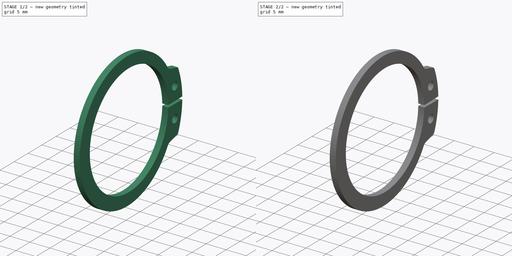
[diagram: build sequence overview — one tinted view per stage of 2, left to right]
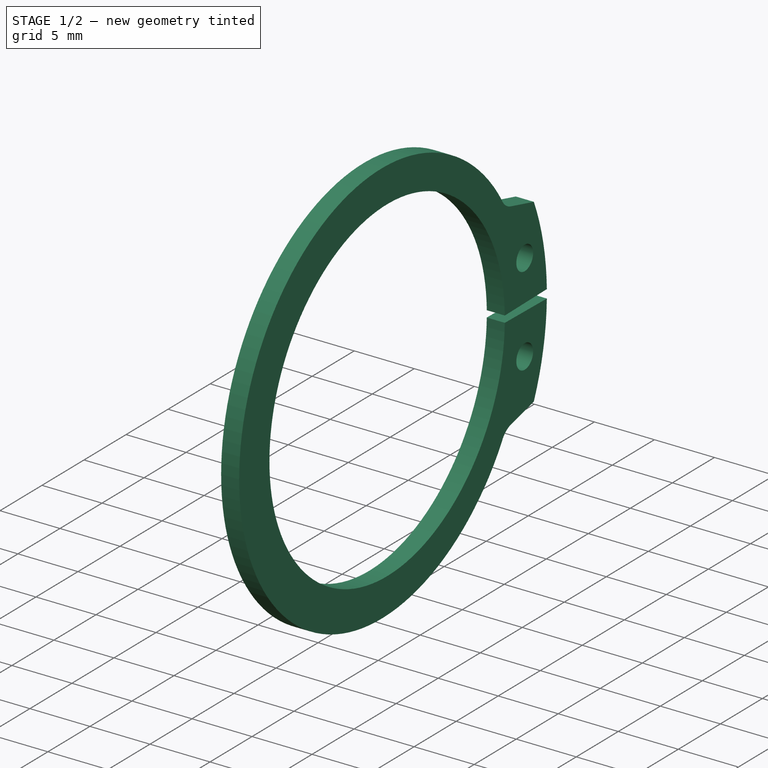
[diagram: stage 1 of 2 — iso view after this stage's code; geometry added in this stage tinted green]
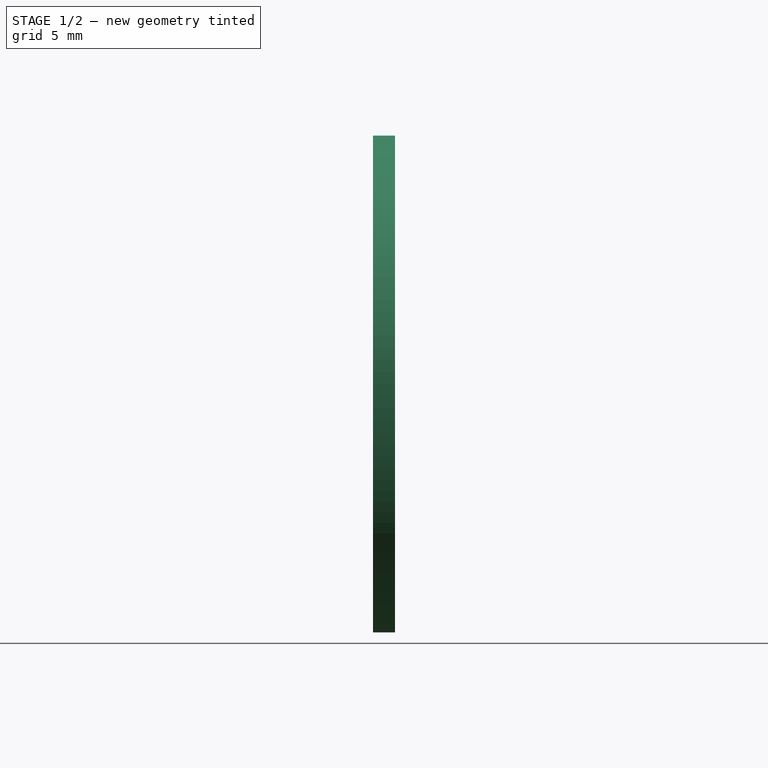
[diagram: stage 1 of 2 — front view after this stage's code; geometry added in this stage tinted green]
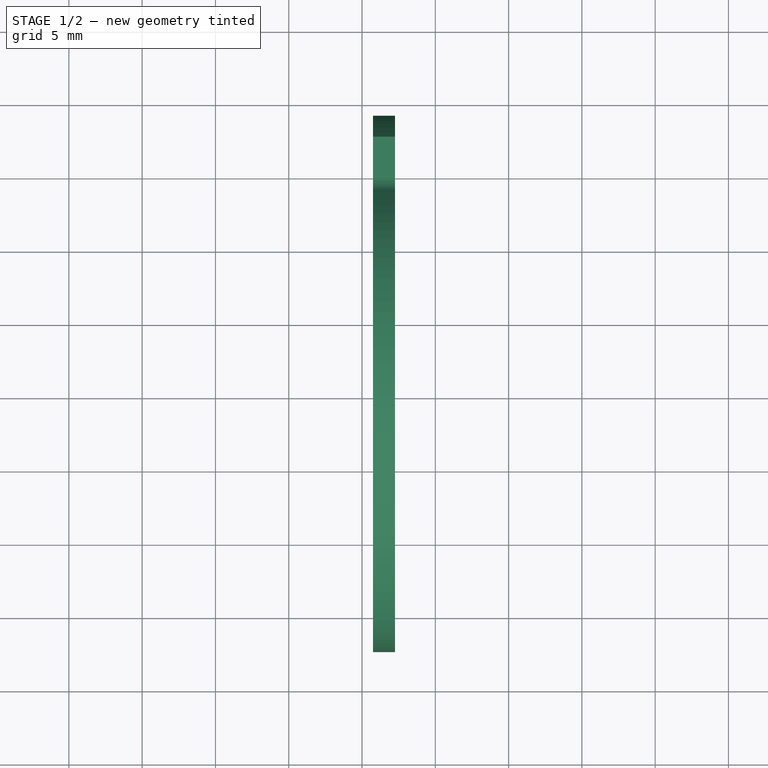
[diagram: stage 1 of 2 — top view after this stage's code; geometry added in this stage tinted green]
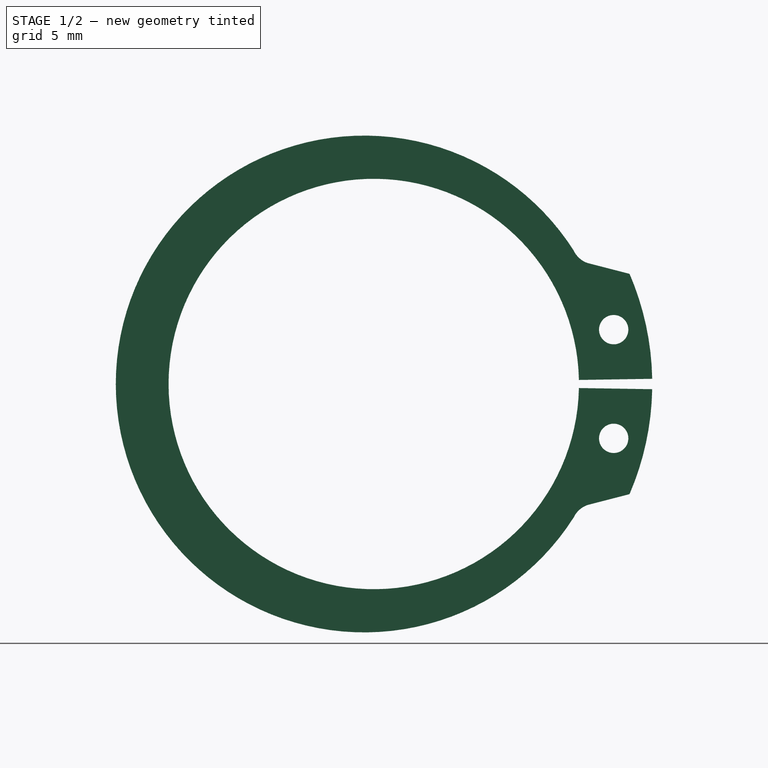
[diagram: stage 1 of 2 — right view after this stage's code; geometry added in this stage tinted green]
FCSTD DOCUMENT  (FreeCAD 0.15R4671 (Git))
Label: DIN471_CLASS_A_M30RetainingRings
License: CreativeCommons Attribution-ShareAlike
LicenseURL: http://creativecommons.org/licenses/by-sa/4.0/
objects: Sketcher::SketchObject×1, PartDesign::Pad×1, PartDesign::Mirrored×1, PartDesign::Fillet×1
note: 5 computed .brp shape members not serialized (recipe doc carries the construction recipe); baked Part::Feature solids carry a one-line shape summary decoded from their .brp

FEATURE [Sketcher::SketchObject] Sketch
  Placement = pos=(0.75,0,0) rot=(0.57735,0.57735,0.57735;2.0944rad)
  sketch-geometry (8):
    g0: Circle CenterX=16.3679 CenterY=3.70763 CenterZ=0 NormalX=0 NormalY=0 NormalZ=1 Radius=1
    g1: ArcOfCircle CenterX=0 CenterY=0 CenterZ=0 NormalX=0 NormalY=0 NormalZ=1 Radius=13.9994 StartAngle=0.0197136 EndAngle=3.14159
    g2: ArcOfCircle CenterX=-0.652954 CenterY=0 CenterZ=0 NormalX=0 NormalY=0 NormalZ=1 Radius=16.9464 StartAngle=0.567236 EndAngle=3.14159
    g3: LineSegment StartX=-17.5994 StartY=0 StartZ=0 EndX=-13.9994 EndY=0 EndZ=0
    g4: LineSegment StartX=13.9967 StartY=0.275961 StartZ=0 EndX=18.9967 EndY=0.354985 EndZ=0
    g5: LineSegment StartX=14.5822 StartY=8.25533 StartZ=0 EndX=17.4507 EndY=7.51486 EndZ=0
    g6: ArcOfCircle CenterX=0 CenterY=0 CenterZ=0 NormalX=0 NormalY=0 NormalZ=1 Radius=19 StartAngle=0.0186845 EndAngle=0.406633
    g7: ArcOfCircle CenterX=15.124 CenterY=9.80394 CenterZ=0 NormalX=0 NormalY=0 NormalZ=1 Radius=1.64065 StartAngle=3.58142 EndAngle=4.37583
  constraints (26):
    c: Radius(g0) = 1
    c: DistanceY(g-1,g0) = 3.70763
    c: DistanceX(g-1,g0) = 16.3679
    c: Coincident(g1,g-1)
    c: PointOnObject(g1,g-1)
    c: PointOnObject(g2,g-1)
    c: PointOnObject(g2,g-1)
    c: Coincident(g3,g2)
    c: Coincident(g3,g1)
    c: Coincident(g4,g1)
    c: DistanceX(g3) = 3.6
    c: DistanceX(g-1,g2) = -0.652954
    c: DistanceX(g4) = 5
    c: DistanceY(g-1,g4) = 0.354985
    c: DistanceY(g-1,g1) = 0.275961
    c: DistanceX(g-1,g2) = 13.6395
    c: DistanceX(g-1,g5) = 14.5822
    c: DistanceY(g-1,g5) = 8.25533
    c: Coincident(g6,g-1)
    c: Coincident(g6,g4)
    c: Coincident(g6,g5)
    c: Radius(g6) = 19
    c: Coincident(g7,g2)
    c: Coincident(g7,g5)
    c: Radius(g7) = 1.64065
    c: DistanceX(g5) = 2.8685
FEATURE [PartDesign::Pad] Pad
  Length = 1.5
  Length2 = 100
  Placement = pos=(0.75,0,0) rot=(0.57735,0.57735,0.57735;2.0944rad)
  Sketch = -> Sketch
  Type = 0
FEATURE [PartDesign::Mirrored] Mirrored
  MirrorPlane = -> Sketch [H_Axis]
  Originals = -> [Pad]
  Placement = pos=(0.75,0,0) rot=(0.57735,0.57735,0.57735;2.0944rad)
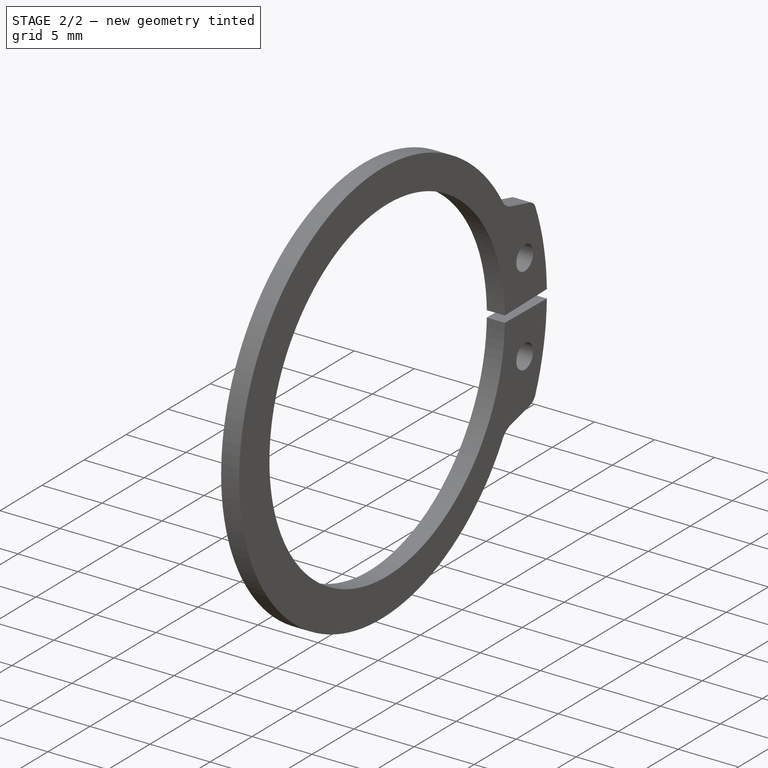
[diagram: stage 2 of 2 — iso view after this stage's code; geometry added in this stage tinted green]
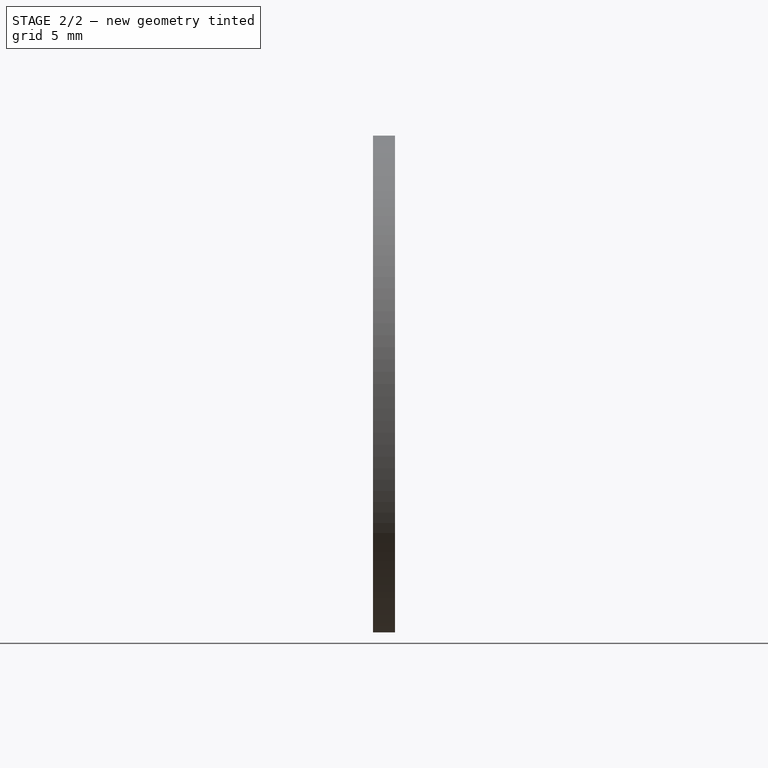
[diagram: stage 2 of 2 — front view after this stage's code; geometry added in this stage tinted green]
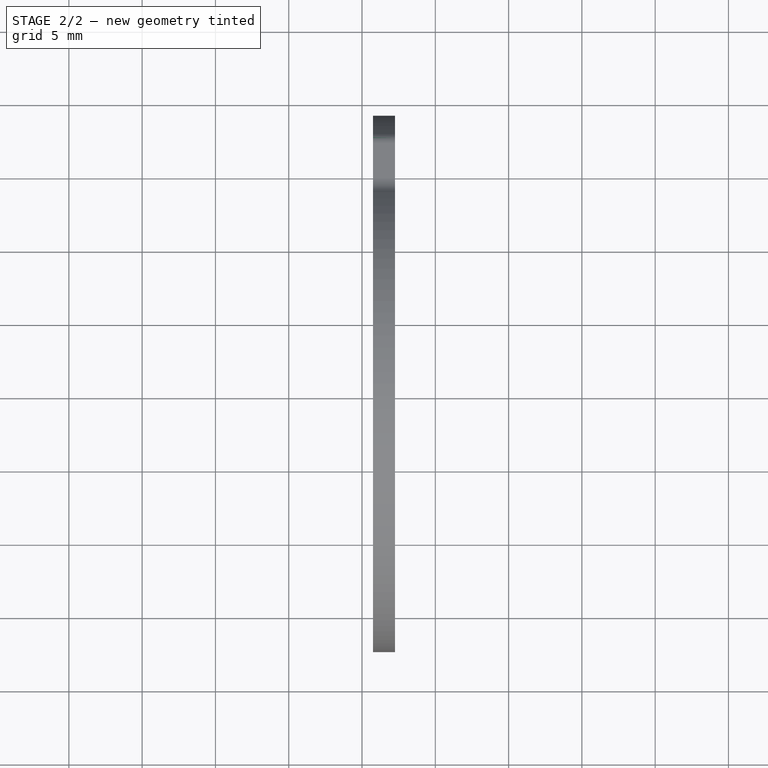
[diagram: stage 2 of 2 — top view after this stage's code; geometry added in this stage tinted green]
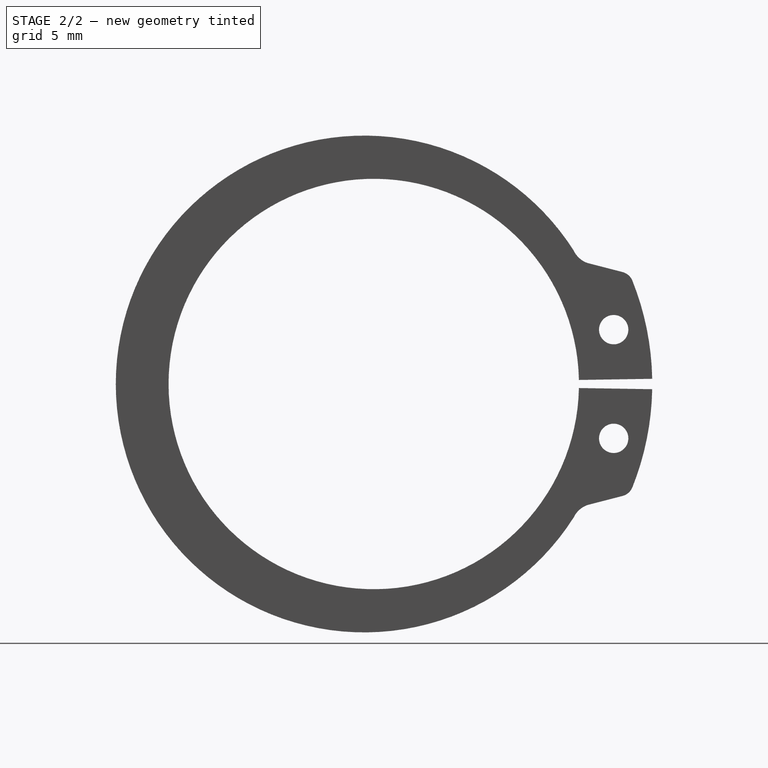
[diagram: stage 2 of 2 — right view after this stage's code; geometry added in this stage tinted green]
FEATURE [PartDesign::Fillet] Fillet
  Base = -> Mirrored [Edge27,Edge5]
  Placement = pos=(0.75,0,0) rot=(0.57735,0.57735,0.57735;2.0944rad)
  Radius = 1
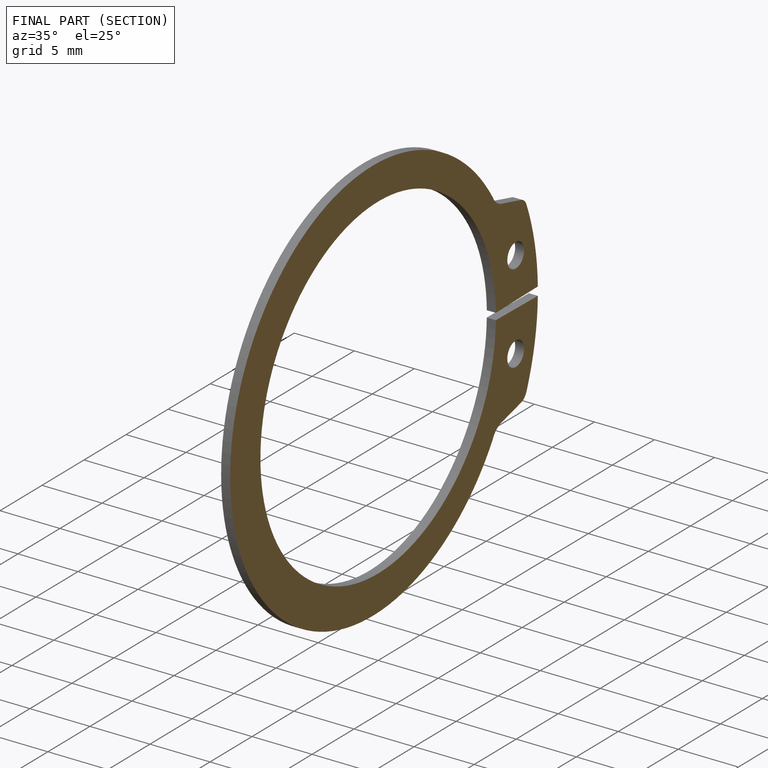
[diagram: finished part — half-section view (interior)]
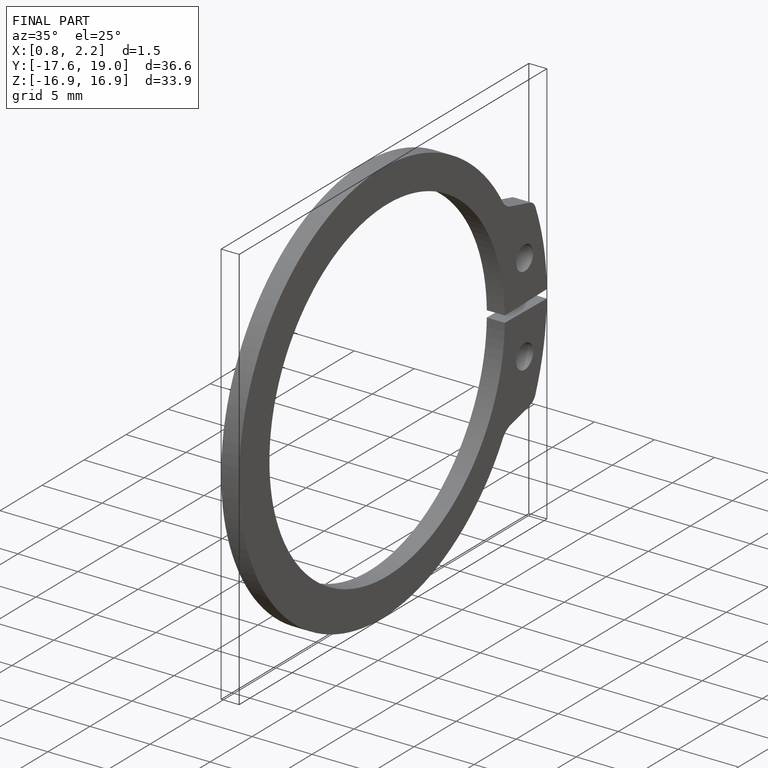
[diagram: finished part — iso view with bounding-box wireframe]
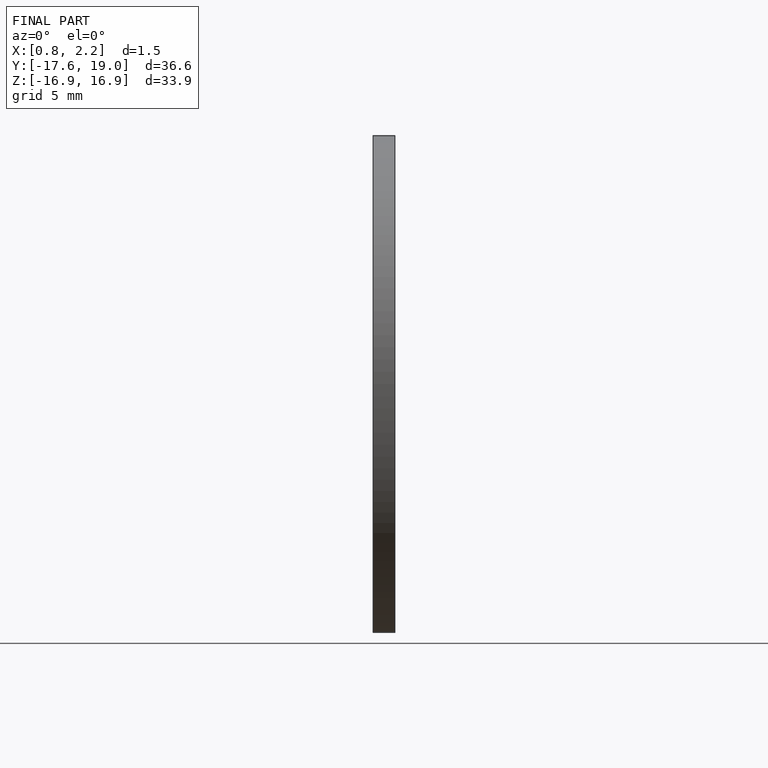
[diagram: finished part — front view with bounding-box wireframe]
